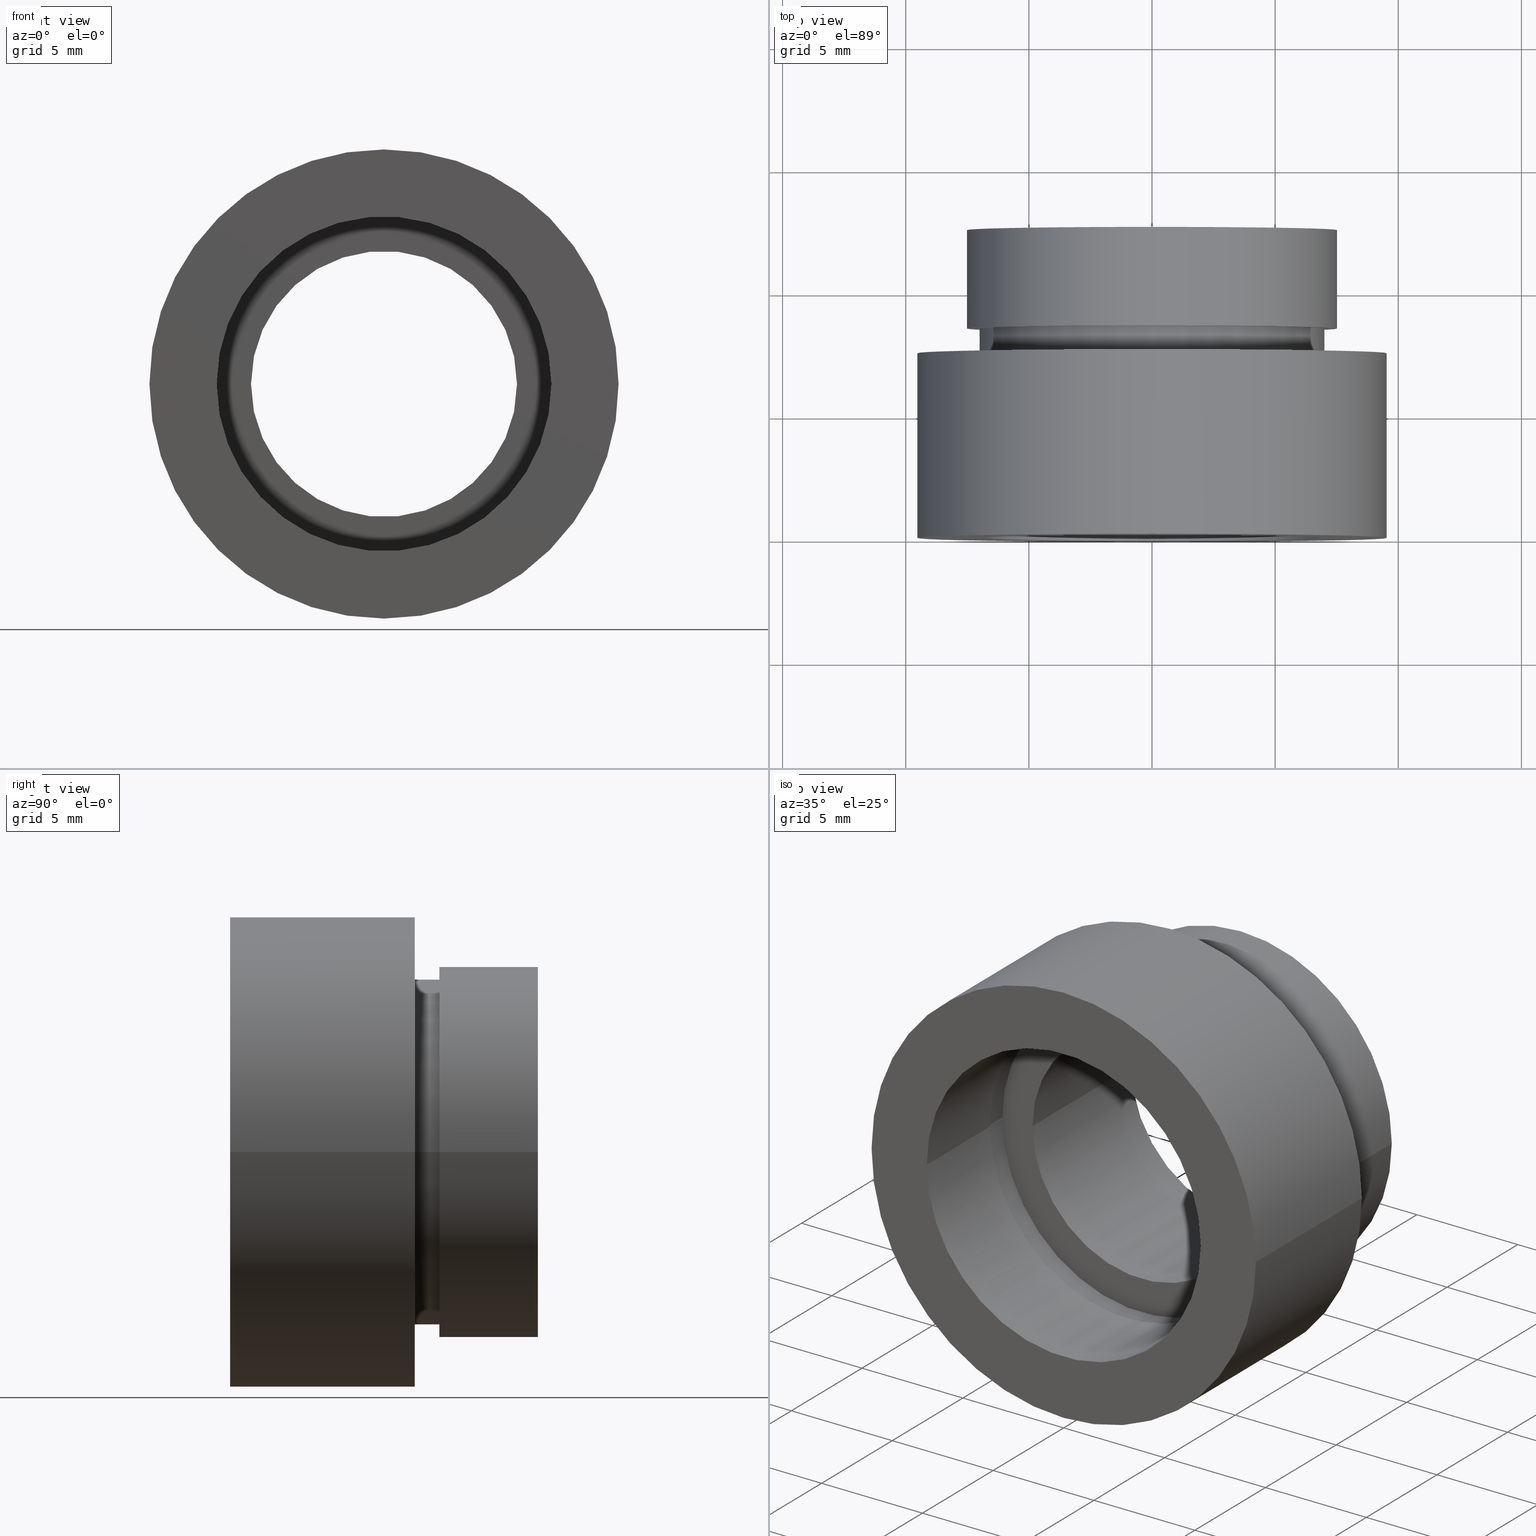
[diagram: canonical four-view strip — front | top / right | iso, engineering-drawing reading convention]
A machine part, canonical four-view strip (front | top / right | iso — engineering-drawing reading convention). The complete STEP part file that produces these views, byte-faithful:
ISO-10303-21;
HEADER;
FILE_DESCRIPTION (( 'STEP AP214' ),
    '1' );
FILE_NAME ('504137.STEP',
    '2019-10-09T01:15:19',
    ( '' ),
    ( '' ),
    'SwSTEP 2.0',
    'SolidWorks 2016',
    '' );
FILE_SCHEMA (( 'AUTOMOTIVE_DESIGN' ));
ENDSEC;

DATA;
#1 = EDGE_CURVE ( 'NONE', #377, #497, #611, .T. ) ;
#2 = SURFACE_STYLE_FILL_AREA ( #21 ) ;
#3 = CYLINDRICAL_SURFACE ( 'NONE', #606, 9.525000000000002100 ) ;
#4 = CARTESIAN_POINT ( 'NONE',  ( 0.0000000000000000000, 16.88601823708207700, 0.0000000000000000000 ) ) ;
#5 = DIRECTION ( 'NONE',  ( -1.000000000000000000, 0.0000000000000000000, 0.0000000000000000000 ) ) ;
#6 = ADVANCED_FACE ( 'NONE', ( #15 ), #59, .T. ) ;
#7 = DIRECTION ( 'NONE',  ( -1.000000000000000000, 0.0000000000000000000, 0.0000000000000000000 ) ) ;
#8 = AXIS2_PLACEMENT_3D ( 'NONE', #456, #609, #134 ) ;
#9 = UNCERTAINTY_MEASURE_WITH_UNIT (LENGTH_MEASURE( 1.000000000000000100E-005 ), #170, 'distance_accuracy_value', 'NONE');
#10 = LINE ( 'NONE', #88, #320 ) ;
#11 = ADVANCED_FACE ( 'NONE', ( #265 ), #247, .T. ) ;
#12 = EDGE_LOOP ( 'NONE', ( #400, #385 ) ) ;
#13 =( NAMED_UNIT ( * ) PLANE_ANGLE_UNIT ( ) SI_UNIT ( $, .RADIAN. ) );
#14 = EDGE_LOOP ( 'NONE', ( #126, #553, #147, #605 ) ) ;
#15 = FACE_OUTER_BOUND ( 'NONE', #526, .T. ) ;
#16 = FILL_AREA_STYLE_COLOUR ( '', #85 ) ;
#17 = DIRECTION ( 'NONE',  ( -1.224646799147351000E-016, 1.000000000000000000, -0.0000000000000000000 ) ) ;
#18 = AXIS2_PLACEMENT_3D ( 'NONE', #277, #623, #331 ) ;
#19 = DIRECTION ( 'NONE',  ( -1.000000000000000000, 0.0000000000000000000, 0.0000000000000000000 ) ) ;
#20 = DIRECTION ( 'NONE',  ( -1.000000000000000000, 0.0000000000000000000, 0.0000000000000000000 ) ) ;
#21 = FILL_AREA_STYLE ('',( #16 ) ) ;
#22 = CARTESIAN_POINT ( 'NONE',  ( -5.399999999999998600, 5.499999999999997300, 0.0000000000000000000 ) ) ;
#23 = MECHANICAL_DESIGN_GEOMETRIC_PRESENTATION_REPRESENTATION (  '', ( #304 ), #232 ) ;
#24 = ORIENTED_EDGE ( 'NONE', *, *, #186, .F. ) ;
#25 = CARTESIAN_POINT ( 'NONE',  ( 5.400000000000001200, 12.49999999999999600, 0.0000000000000000000 ) ) ;
#26 = AXIS2_PLACEMENT_3D ( 'NONE', #301, #493, #600 ) ;
#27 = CARTESIAN_POINT ( 'NONE',  ( 5.400000000000002100, 5.499999999999999100, 6.613092715395707500E-016 ) ) ;
#28 = MECHANICAL_DESIGN_GEOMETRIC_PRESENTATION_REPRESENTATION (  '', ( #345 ), #263 ) ;
#29 = EDGE_CURVE ( 'NONE', #467, #43, #361, .T. ) ;
#30 = CIRCLE ( 'NONE', #371, 7.509999999999999800 ) ;
#31 = CARTESIAN_POINT ( 'NONE',  ( 9.525000000000005700, 1.166476076187852400E-015, 1.166476076187854400E-015 ) ) ;
#32 = PRODUCT_DEFINITION ( 'δ֪', '', #89, #288 ) ;
#33 = VERTEX_POINT ( 'NONE', #520 ) ;
#34 = CARTESIAN_POINT ( 'NONE',  ( 1.394385078907593000E-015, 5.499999999999998200, 0.0000000000000000000 ) ) ;
#35 = AXIS2_PLACEMENT_3D ( 'NONE', #293, #154, #583 ) ;
#36 = EDGE_CURVE ( 'NONE', #45, #596, #125, .T. ) ;
#37 = COLOUR_RGB ( '',1.000000000000000000, 1.000000000000000000, 1.000000000000000000 ) ;
#38 = CARTESIAN_POINT ( 'NONE',  ( 6.795000000000002600, 8.321475000206250400E-016, 8.321475000206265200E-016 ) ) ;
#39 = PRESENTATION_LAYER_ASSIGNMENT (  '', '', ( #345 ) ) ;
#40 = DIRECTION ( 'NONE',  ( -1.000000000000000000, 0.0000000000000000000, 0.0000000000000000000 ) ) ;
#41 = DIRECTION ( 'NONE',  ( -1.224646799147351000E-016, 1.000000000000000000, -0.0000000000000000000 ) ) ;
#42 = FACE_OUTER_BOUND ( 'NONE', #81, .T. ) ;
#43 = VERTEX_POINT ( 'NONE', #194 ) ;
#44 = AXIS2_PLACEMENT_3D ( 'NONE', #163, #65, #112 ) ;
#45 = VERTEX_POINT ( 'NONE', #425 ) ;
#46 = ORIENTED_EDGE ( 'NONE', *, *, #275, .T. ) ;
#47 = CARTESIAN_POINT ( 'NONE',  ( 2.067940818438636100E-015, 0.0000000000000000000, 0.0000000000000000000 ) ) ;
#48 = EDGE_CURVE ( 'NONE', #308, #314, #298, .T. ) ;
#49 = CARTESIAN_POINT ( 'NONE',  ( -7.000000000000000000, 16.88601823708207700, 0.0000000000000000000 ) ) ;
#50 = DIRECTION ( 'NONE',  ( 1.224646799147351000E-016, -1.000000000000000000, 0.0000000000000000000 ) ) ;
#51 = EDGE_LOOP ( 'NONE', ( #282, #171 ) ) ;
#52 = STYLED_ITEM ( 'NONE', ( #285 ), #11 ) ;
#53 = CARTESIAN_POINT ( 'NONE',  ( 0.0000000000000000000, 16.88601823708207700, 0.0000000000000000000 ) ) ;
#54 =( GEOMETRIC_REPRESENTATION_CONTEXT ( 3 ) GLOBAL_UNCERTAINTY_ASSIGNED_CONTEXT ( ( #387 ) ) GLOBAL_UNIT_ASSIGNED_CONTEXT ( ( #340, #56, #476 ) ) REPRESENTATION_CONTEXT ( 'NONE', 'WORKASPACE' ) );
#55 = ADVANCED_FACE ( 'NONE', ( #177 ), #3, .T. ) ;
#56 =( NAMED_UNIT ( * ) PLANE_ANGLE_UNIT ( ) SI_UNIT ( $, .RADIAN. ) );
#57 = COLOUR_RGB ( '',1.000000000000000000, 1.000000000000000000, 1.000000000000000000 ) ;
#58 = UNCERTAINTY_MEASURE_WITH_UNIT (LENGTH_MEASURE( 1.000000000000000100E-005 ), #63, 'distance_accuracy_value', 'NONE');
#59 = CYLINDRICAL_SURFACE ( 'NONE', #64, 7.000000000000000000 ) ;
#60 = ORIENTED_EDGE ( 'NONE', *, *, #440, .F. ) ;
#61 = ORIENTED_EDGE ( 'NONE', *, *, #99, .T. ) ;
#62 =( NAMED_UNIT ( * ) SI_UNIT ( $, .STERADIAN. ) SOLID_ANGLE_UNIT ( ) );
#63 =( LENGTH_UNIT ( ) NAMED_UNIT ( * ) SI_UNIT ( .MILLI., .METRE. ) );
#64 = AXIS2_PLACEMENT_3D ( 'NONE', #53, #284, #107 ) ;
#65 = DIRECTION ( 'NONE',  ( -1.224646799147351000E-016, 1.000000000000000000, -0.0000000000000000000 ) ) ;
#66 = CIRCLE ( 'NONE', #148, 9.525000000000003900 ) ;
#67 = ORIENTED_EDGE ( 'NONE', *, *, #1, .T. ) ;
#68 = CARTESIAN_POINT ( 'NONE',  ( 0.0000000000000000000, 16.88601823708207700, 0.0000000000000000000 ) ) ;
#69 = CARTESIAN_POINT ( 'NONE',  ( 2.067940818438636100E-015, 0.0000000000000000000, 0.0000000000000000000 ) ) ;
#70 = DIRECTION ( 'NONE',  ( -1.000000000000000000, 0.0000000000000000000, 0.0000000000000000000 ) ) ;
#71 = CIRCLE ( 'NONE', #166, 5.400000000000000400 ) ;
#72 = ORIENTED_EDGE ( 'NONE', *, *, #530, .T. ) ;
#73 = DIRECTION ( 'NONE',  ( -1.224646799147351000E-016, 1.000000000000000000, 0.0000000000000000000 ) ) ;
#74 = EDGE_CURVE ( 'NONE', #102, #489, #252, .T. ) ;
#75 =( NAMED_UNIT ( * ) SI_UNIT ( $, .STERADIAN. ) SOLID_ANGLE_UNIT ( ) );
#76 = UNCERTAINTY_MEASURE_WITH_UNIT (LENGTH_MEASURE( 1.000000000000000100E-005 ), #372, 'distance_accuracy_value', 'NONE');
#77 = SURFACE_STYLE_FILL_AREA ( #299 ) ;
#78 = EDGE_CURVE ( 'NONE', #33, #221, #474, .T. ) ;
#79 = FACE_BOUND ( 'NONE', #241, .T. ) ;
#80 = CIRCLE ( 'NONE', #327, 5.400000000000000400 ) ;
#81 = EDGE_LOOP ( 'NONE', ( #213, #323, #200, #423 ) ) ;
#82 = EDGE_LOOP ( 'NONE', ( #409, #287 ) ) ;
#83 = AXIS2_PLACEMENT_3D ( 'NONE', #114, #529, #478 ) ;
#84 = SURFACE_SIDE_STYLE ('',( #495 ) ) ;
#85 = COLOUR_RGB ( '',1.000000000000000000, 1.000000000000000000, 1.000000000000000000 ) ;
#86 = AXIS2_PLACEMENT_3D ( 'NONE', #152, #160, #528 ) ;
#87 = EDGE_LOOP ( 'NONE', ( #229, #446 ) ) ;
#88 = CARTESIAN_POINT ( 'NONE',  ( -6.900000000000000400, 16.88601823708207700, 0.0000000000000000000 ) ) ;
#89 = PRODUCT_DEFINITION_FORMATION_WITH_SPECIFIED_SOURCE ( '�κ�', '', #257, .NOT_KNOWN. ) ;
#90 = EDGE_LOOP ( 'NONE', ( #110, #362, #620, #399 ) ) ;
#91 = EDGE_CURVE ( 'NONE', #369, #306, #131, .T. ) ;
#92 = CARTESIAN_POINT ( 'NONE',  ( 1.394385078907593000E-015, 5.499999999999998200, 0.0000000000000000000 ) ) ;
#93 = ADVANCED_FACE ( 'NONE', ( #479 ), #502, .F. ) ;
#94 = CYLINDRICAL_SURFACE ( 'NONE', #119, 6.900000000000000400 ) ;
#95 = AXIS2_PLACEMENT_3D ( 'NONE', #203, #391, #249 ) ;
#96 = EDGE_LOOP ( 'NONE', ( #184, #621 ) ) ;
#97 = DIRECTION ( 'NONE',  ( -1.224646799147351000E-016, 1.000000000000000000, -0.0000000000000000000 ) ) ;
#98 =( GEOMETRIC_REPRESENTATION_CONTEXT ( 3 ) GLOBAL_UNCERTAINTY_ASSIGNED_CONTEXT ( ( #464 ) ) GLOBAL_UNIT_ASSIGNED_CONTEXT ( ( #413, #178, #604 ) ) REPRESENTATION_CONTEXT ( 'NONE', 'WORKASPACE' ) );
#99 = EDGE_CURVE ( 'NONE', #185, #102, #384, .T. ) ;
#100 = ADVANCED_FACE ( 'NONE', ( #427 ), #575, .F. ) ;
#101 = ADVANCED_FACE ( 'NONE', ( #176 ), #610, .T. ) ;
#102 = VERTEX_POINT ( 'NONE', #157 ) ;
#103 = ORIENTED_EDGE ( 'NONE', *, *, #622, .T. ) ;
#104 = FILL_AREA_STYLE ('',( #577 ) ) ;
#105 = FILL_AREA_STYLE_COLOUR ( '', #303 ) ;
#106 = STYLED_ITEM ( 'NONE', ( #109 ), #100 ) ;
#107 = DIRECTION ( 'NONE',  ( -1.000000000000000000, 0.0000000000000000000, 0.0000000000000000000 ) ) ;
#108 = PRESENTATION_STYLE_ASSIGNMENT (( #505 ) ) ;
#109 = PRESENTATION_STYLE_ASSIGNMENT (( #347 ) ) ;
#110 = ORIENTED_EDGE ( 'NONE', *, *, #616, .T. ) ;
#111 = CARTESIAN_POINT ( 'NONE',  ( 5.371323195044475300E-016, 12.49999999999999600, 0.0000000000000000000 ) ) ;
#112 = DIRECTION ( 'NONE',  ( -1.000000000000000000, -1.239088197126290800E-016, 0.0000000000000000000 ) ) ;
#113 = CARTESIAN_POINT ( 'NONE',  ( 1.026991039163387700E-015, 8.499999999999998200, 0.0000000000000000000 ) ) ;
#114 = CARTESIAN_POINT ( 'NONE',  ( 5.371323195044475300E-016, 12.49999999999999600, 0.0000000000000000000 ) ) ;
#115 = AXIS2_PLACEMENT_3D ( 'NONE', #487, #309, #251 ) ;
#116 = FACE_OUTER_BOUND ( 'NONE', #339, .T. ) ;
#117 = DIRECTION ( 'NONE',  ( -1.224646799147351000E-016, 1.000000000000000000, -0.0000000000000000000 ) ) ;
#118 = EDGE_LOOP ( 'NONE', ( #272, #363 ) ) ;
#119 = AXIS2_PLACEMENT_3D ( 'NONE', #123, #448, #70 ) ;
#120 = DIRECTION ( 'NONE',  ( -1.224646799147351000E-016, 1.000000000000000000, -0.0000000000000000000 ) ) ;
#121 = MANIFOLD_SOLID_BREP ( '��ת1', #356 ) ;
#122 = VECTOR ( 'NONE', #508, 1000.000000000000000 ) ;
#123 = CARTESIAN_POINT ( 'NONE',  ( 0.0000000000000000000, 16.88601823708207700, 0.0000000000000000000 ) ) ;
#124 = CYLINDRICAL_SURFACE ( 'NONE', #379, 7.509999999999999800 ) ;
#125 = CIRCLE ( 'NONE', #95, 7.000000000000000000 ) ;
#126 = ORIENTED_EDGE ( 'NONE', *, *, #573, .F. ) ;
#127 = MECHANICAL_DESIGN_GEOMETRIC_PRESENTATION_REPRESENTATION (  '', ( #106 ), #359 ) ;
#128 = EDGE_CURVE ( 'NONE', #578, #236, #337, .T. ) ;
#129 = DIRECTION ( 'NONE',  ( 1.000000000000000000, 1.224646799147351000E-016, 0.0000000000000000000 ) ) ;
#130 = AXIS2_PLACEMENT_3D ( 'NONE', #326, #231, #269 ) ;
#131 = LINE ( 'NONE', #485, #488 ) ;
#132 = ORIENTED_EDGE ( 'NONE', *, *, #473, .T. ) ;
#133 = DIRECTION ( 'NONE',  ( -1.000000000000000000, -9.106159978880877400E-017, 0.0000000000000000000 ) ) ;
#134 = DIRECTION ( 'NONE',  ( -1.000000000000000000, -2.309884788251407900E-016, 0.0000000000000000000 ) ) ;
#135 = PLANE ( 'NONE',  #183 ) ;
#136 = VECTOR ( 'NONE', #120, 1000.000000000000000 ) ;
#137 = AXIS2_PLACEMENT_3D ( 'NONE', #441, #17, #204 ) ;
#138 = PRODUCT_CONTEXT ( 'NONE', #554, 'mechanical' ) ;
#139 = EDGE_LOOP ( 'NONE', ( #438, #165 ) ) ;
#140 = CARTESIAN_POINT ( 'NONE',  ( -9.524999999999998600, 7.499999999999997300, 0.0000000000000000000 ) ) ;
#141 = ADVANCED_FACE ( 'NONE', ( #161 ), #536, .F. ) ;
#142 = ORIENTED_EDGE ( 'NONE', *, *, #244, .T. ) ;
#143 =( NAMED_UNIT ( * ) SI_UNIT ( $, .STERADIAN. ) SOLID_ANGLE_UNIT ( ) );
#144 = DIRECTION ( 'NONE',  ( -1.000000000000000000, 0.0000000000000000000, 0.0000000000000000000 ) ) ;
#145 = DIRECTION ( 'NONE',  ( -1.224646799147351000E-016, 1.000000000000000000, -0.0000000000000000000 ) ) ;
#146 = AXIS2_PLACEMENT_3D ( 'NONE', #34, #211, #595 ) ;
#147 = ORIENTED_EDGE ( 'NONE', *, *, #151, .T. ) ;
#148 = AXIS2_PLACEMENT_3D ( 'NONE', #69, #394, #246 ) ;
#149 = PRESENTATION_LAYER_ASSIGNMENT (  '', '', ( #167 ) ) ;
#150 = AXIS2_PLACEMENT_3D ( 'NONE', #407, #458, #318 ) ;
#151 = EDGE_CURVE ( 'NONE', #489, #102, #80, .T. ) ;
#152 = CARTESIAN_POINT ( 'NONE',  ( 1.026991039163387500E-015, 8.500000000000000000, 0.0000000000000000000 ) ) ;
#153 = ORIENTED_EDGE ( 'NONE', *, *, #591, .T. ) ;
#154 = DIRECTION ( 'NONE',  ( -1.224646799147351000E-016, 1.000000000000000000, -0.0000000000000000000 ) ) ;
#155 =( LENGTH_UNIT ( ) NAMED_UNIT ( * ) SI_UNIT ( .MILLI., .METRE. ) );
#156 = CARTESIAN_POINT ( 'NONE',  ( 1.394385078907593000E-015, 5.499999999999998200, 0.0000000000000000000 ) ) ;
#157 = CARTESIAN_POINT ( 'NONE',  ( -5.399999999999999500, 12.49999999999999600, 0.0000000000000000000 ) ) ;
#158 = FACE_BOUND ( 'NONE', #82, .T. ) ;
#159 = FACE_BOUND ( 'NONE', #519, .T. ) ;
#160 = DIRECTION ( 'NONE',  ( -1.224646799147351000E-016, 1.000000000000000000, -0.0000000000000000000 ) ) ;
#161 = FACE_OUTER_BOUND ( 'NONE', #14, .T. ) ;
#162 = EDGE_LOOP ( 'NONE', ( #475, #589 ) ) ;
#163 = CARTESIAN_POINT ( 'NONE',  ( 1.149455719078122500E-015, 7.500000000000000000, 0.0000000000000000000 ) ) ;
#164 = EDGE_CURVE ( 'NONE', #333, #454, #568, .T. ) ;
#165 = ORIENTED_EDGE ( 'NONE', *, *, #48, .F. ) ;
#166 = AXIS2_PLACEMENT_3D ( 'NONE', #92, #424, #188 ) ;
#167 = STYLED_ITEM ( 'NONE', ( #329 ), #515 ) ;
#168 = CARTESIAN_POINT ( 'NONE',  ( 5.400000000000001200, 12.49999999999999600, 6.613092715395707500E-016 ) ) ;
#169 = SURFACE_STYLE_FILL_AREA ( #305 ) ;
#170 =( LENGTH_UNIT ( ) NAMED_UNIT ( * ) SI_UNIT ( .MILLI., .METRE. ) );
#171 = ORIENTED_EDGE ( 'NONE', *, *, #353, .F. ) ;
#172 = ORIENTED_EDGE ( 'NONE', *, *, #530, .F. ) ;
#173 = AXIS2_PLACEMENT_3D ( 'NONE', #334, #197, #386 ) ;
#174 = CIRCLE ( 'NONE', #576, 6.794999999999999900 ) ;
#175 = DIRECTION ( 'NONE',  ( -1.224646799147351000E-016, 1.000000000000000000, -0.0000000000000000000 ) ) ;
#176 = FACE_OUTER_BOUND ( 'NONE', #558, .T. ) ;
#177 = FACE_OUTER_BOUND ( 'NONE', #482, .T. ) ;
#178 =( NAMED_UNIT ( * ) PLANE_ANGLE_UNIT ( ) SI_UNIT ( $, .RADIAN. ) );
#179 = SURFACE_STYLE_USAGE ( .BOTH. , #84 ) ;
#180 = DIRECTION ( 'NONE',  ( -1.224646799147351000E-016, 1.000000000000000000, -0.0000000000000000000 ) ) ;
#181 = AXIS2_PLACEMENT_3D ( 'NONE', #447, #496, #217 ) ;
#182 = DIRECTION ( 'NONE',  ( -1.000000000000000000, -1.224646799147351000E-016, 0.0000000000000000000 ) ) ;
#183 = AXIS2_PLACEMENT_3D ( 'NONE', #617, #559, #418 ) ;
#184 = ORIENTED_EDGE ( 'NONE', *, *, #36, .T. ) ;
#185 = VERTEX_POINT ( 'NONE', #22 ) ;
#186 = EDGE_CURVE ( 'NONE', #316, #587, #312, .T. ) ;
#187 = ADVANCED_BREP_SHAPE_REPRESENTATION ( '504137', ( #121, #518 ), #196 ) ;
#188 = DIRECTION ( 'NONE',  ( -1.000000000000000000, -1.606225440719265600E-016, 0.0000000000000000000 ) ) ;
#189 = LINE ( 'NONE', #49, #564 ) ;
#190 = FACE_OUTER_BOUND ( 'NONE', #569, .T. ) ;
#191 = PRESENTATION_LAYER_ASSIGNMENT (  '', '', ( #585 ) ) ;
#192 = VECTOR ( 'NONE', #392, 1000.000000000000000 ) ;
#193 = ORIENTED_EDGE ( 'NONE', *, *, #223, .F. ) ;
#194 = CARTESIAN_POINT ( 'NONE',  ( 6.795000000000000800, 4.499999999999998200, 8.321475000206263300E-016 ) ) ;
#195 = EDGE_CURVE ( 'NONE', #596, #45, #297, .T. ) ;
#196 =( GEOMETRIC_REPRESENTATION_CONTEXT ( 3 ) GLOBAL_UNCERTAINTY_ASSIGNED_CONTEXT ( ( #290 ) ) GLOBAL_UNIT_ASSIGNED_CONTEXT ( ( #234, #419, #143 ) ) REPRESENTATION_CONTEXT ( 'NONE', 'WORKASPACE' ) );
#197 = DIRECTION ( 'NONE',  ( -1.224646799147351000E-016, 1.000000000000000000, -0.0000000000000000000 ) ) ;
#198 = VECTOR ( 'NONE', #563, 1000.000000000000000 ) ;
#199 = ORIENTED_EDGE ( 'NONE', *, *, #275, .F. ) ;
#200 = ORIENTED_EDGE ( 'NONE', *, *, #128, .T. ) ;
#201 = DIRECTION ( 'NONE',  ( -1.224646799147351000E-016, 1.000000000000000000, -0.0000000000000000000 ) ) ;
#202 = PRESENTATION_LAYER_ASSIGNMENT (  '', '', ( #304 ) ) ;
#203 = CARTESIAN_POINT ( 'NONE',  ( 1.026991039163387500E-015, 8.500000000000000000, 0.0000000000000000000 ) ) ;
#204 = DIRECTION ( 'NONE',  ( -1.000000000000000000, 0.0000000000000000000, 0.0000000000000000000 ) ) ;
#205 = COLOUR_RGB ( '',1.000000000000000000, 1.000000000000000000, 1.000000000000000000 ) ;
#206 = CARTESIAN_POINT ( 'NONE',  ( 0.0000000000000000000, 16.88601823708207700, 0.0000000000000000000 ) ) ;
#207 = EDGE_CURVE ( 'NONE', #369, #578, #437, .T. ) ;
#208 = ORIENTED_EDGE ( 'NONE', *, *, #612, .T. ) ;
#209 = DIRECTION ( 'NONE',  ( -1.000000000000000000, -2.309884788251407900E-016, 0.0000000000000000000 ) ) ;
#210 = PLANE ( 'NONE',  #268 ) ;
#211 = DIRECTION ( 'NONE',  ( -1.224646799147351000E-016, 1.000000000000000000, -0.0000000000000000000 ) ) ;
#212 = SURFACE_STYLE_FILL_AREA ( #592 ) ;
#213 = ORIENTED_EDGE ( 'NONE', *, *, #91, .F. ) ;
#214 = ORIENTED_EDGE ( 'NONE', *, *, #343, .T. ) ;
#215 = CARTESIAN_POINT ( 'NONE',  ( -6.794999999999998200, -8.321475000206249500E-016, 0.0000000000000000000 ) ) ;
#216 = EDGE_CURVE ( 'NONE', #316, #377, #66, .T. ) ;
#217 = DIRECTION ( 'NONE',  ( -1.000000000000000000, -1.224646799147351200E-016, 0.0000000000000000000 ) ) ;
#218 = CIRCLE ( 'NONE', #341, 9.525000000000000400 ) ;
#219 = CARTESIAN_POINT ( 'NONE',  ( -6.899999999999998600, 4.499999999999996400, 0.0000000000000000000 ) ) ;
#220 = ORIENTED_EDGE ( 'NONE', *, *, #580, .F. ) ;
#221 = VERTEX_POINT ( 'NONE', #433 ) ;
#222 = STYLED_ITEM ( 'NONE', ( #245 ), #283 ) ;
#223 = EDGE_CURVE ( 'NONE', #454, #333, #330, .T. ) ;
#224 = APPLICATION_CONTEXT ( 'automotive_design' ) ;
#225 = DIRECTION ( 'NONE',  ( -1.224646799147351000E-016, 1.000000000000000000, -0.0000000000000000000 ) ) ;
#226 = CIRCLE ( 'NONE', #242, 6.794999999999999000 ) ;
#227 = VECTOR ( 'NONE', #484, 1000.000000000000000 ) ;
#228 = CARTESIAN_POINT ( 'NONE',  ( 1.516849758822328300E-015, 4.499999999999997300, 0.0000000000000000000 ) ) ;
#229 = ORIENTED_EDGE ( 'NONE', *, *, #29, .F. ) ;
#230 = UNCERTAINTY_MEASURE_WITH_UNIT (LENGTH_MEASURE( 1.000000000000000100E-005 ), #590, 'distance_accuracy_value', 'NONE');
#231 = DIRECTION ( 'NONE',  ( -1.224646799147351000E-016, 1.000000000000000000, -0.0000000000000000000 ) ) ;
#232 =( GEOMETRIC_REPRESENTATION_CONTEXT ( 3 ) GLOBAL_UNCERTAINTY_ASSIGNED_CONTEXT ( ( #342 ) ) GLOBAL_UNIT_ASSIGNED_CONTEXT ( ( #155, #13, #477 ) ) REPRESENTATION_CONTEXT ( 'NONE', 'WORKASPACE' ) );
#233 = CARTESIAN_POINT ( 'NONE',  ( 0.0000000000000000000, 0.0000000000000000000, 0.0000000000000000000 ) ) ;
#234 =( LENGTH_UNIT ( ) NAMED_UNIT ( * ) SI_UNIT ( .MILLI., .METRE. ) );
#235 = COLOUR_RGB ( '',1.000000000000000000, 1.000000000000000000, 1.000000000000000000 ) ;
#236 = VERTEX_POINT ( 'NONE', #300 ) ;
#237 = CARTESIAN_POINT ( 'NONE',  ( 7.000000000000000900, 7.500000000000000000, 0.0000000000000000000 ) ) ;
#238 = CIRCLE ( 'NONE', #181, 9.525000000000003900 ) ;
#239 = FILL_AREA_STYLE_COLOUR ( '', #618 ) ;
#240 = EDGE_LOOP ( 'NONE', ( #468, #103, #430, #199 ) ) ;
#241 = EDGE_LOOP ( 'NONE', ( #408, #208 ) ) ;
#242 = AXIS2_PLACEMENT_3D ( 'NONE', #228, #556, #550 ) ;
#243 = ADVANCED_FACE ( 'NONE', ( #281, #79 ), #543, .F. ) ;
#244 = EDGE_CURVE ( 'NONE', #221, #33, #602, .T. ) ;
#245 = PRESENTATION_STYLE_ASSIGNMENT (( #541 ) ) ;
#246 = DIRECTION ( 'NONE',  ( -1.000000000000000000, -1.224646799147351200E-016, 0.0000000000000000000 ) ) ;
#247 = CYLINDRICAL_SURFACE ( 'NONE', #500, 7.509999999999999800 ) ;
#248 =( NAMED_UNIT ( * ) PLANE_ANGLE_UNIT ( ) SI_UNIT ( $, .RADIAN. ) );
#249 = DIRECTION ( 'NONE',  ( -1.000000000000000000, 0.0000000000000000000, 0.0000000000000000000 ) ) ;
#250 = AXIS2_PLACEMENT_3D ( 'NONE', #156, #588, #295 ) ;
#251 = DIRECTION ( 'NONE',  ( -1.000000000000000000, -1.257045997084642900E-016, 0.0000000000000000000 ) ) ;
#252 = CIRCLE ( 'NONE', #83, 5.400000000000000400 ) ;
#253 = DIRECTION ( 'NONE',  ( -1.000000000000000000, 0.0000000000000000000, 0.0000000000000000000 ) ) ;
#254 = CARTESIAN_POINT ( 'NONE',  ( 9.525000000000005700, -7.918900577448027900E-016, 0.0000000000000000000 ) ) ;
#255 = VECTOR ( 'NONE', #97, 1000.000000000000000 ) ;
#256 = PLANE ( 'NONE',  #26 ) ;
#257 = PRODUCT ( '504137', '504137', '', ( #138 ) ) ;
#258 = AXIS2_PLACEMENT_3D ( 'NONE', #68, #435, #7 ) ;
#259 = ORIENTED_EDGE ( 'NONE', *, *, #517, .T. ) ;
#260 = DIRECTION ( 'NONE',  ( -1.224646799147351000E-016, 1.000000000000000000, -0.0000000000000000000 ) ) ;
#261 = MECHANICAL_DESIGN_GEOMETRIC_PRESENTATION_REPRESENTATION (  '', ( #167 ), #98 ) ;
#262 = FILL_AREA_STYLE ('',( #555 ) ) ;
#263 =( GEOMETRIC_REPRESENTATION_CONTEXT ( 3 ) GLOBAL_UNCERTAINTY_ASSIGNED_CONTEXT ( ( #76 ) ) GLOBAL_UNIT_ASSIGNED_CONTEXT ( ( #372, #511, #507 ) ) REPRESENTATION_CONTEXT ( 'NONE', 'WORKASPACE' ) );
#264 = CARTESIAN_POINT ( 'NONE',  ( 0.0000000000000000000, 16.88601823708207700, 0.0000000000000000000 ) ) ;
#265 = FACE_OUTER_BOUND ( 'NONE', #90, .T. ) ;
#266 = SURFACE_SIDE_STYLE ('',( #451 ) ) ;
#267 = FILL_AREA_STYLE_COLOUR ( '', #584 ) ;
#268 = AXIS2_PLACEMENT_3D ( 'NONE', #25, #499, #129 ) ;
#269 = DIRECTION ( 'NONE',  ( -1.000000000000000000, -1.606225440719265600E-016, 0.0000000000000000000 ) ) ;
#270 = LINE ( 'NONE', #624, #122 ) ;
#271 = VECTOR ( 'NONE', #396, 1000.000000000000000 ) ;
#272 = ORIENTED_EDGE ( 'NONE', *, *, #537, .T. ) ;
#273 = CARTESIAN_POINT ( 'NONE',  ( 5.400000000000002100, 5.499999999999997300, 0.0000000000000000000 ) ) ;
#274 = VERTEX_POINT ( 'NONE', #215 ) ;
#275 = EDGE_CURVE ( 'NONE', #274, #467, #566, .T. ) ;
#276 = DIRECTION ( 'NONE',  ( -1.000000000000000000, -1.224646799147351000E-016, 0.0000000000000000000 ) ) ;
#277 = CARTESIAN_POINT ( 'NONE',  ( 1.026991039163387700E-015, 8.499999999999998200, 0.0000000000000000000 ) ) ;
#278 = PRESENTATION_LAYER_ASSIGNMENT (  '', '', ( #106 ) ) ;
#279 = CYLINDRICAL_SURFACE ( 'NONE', #614, 7.000000000000000000 ) ;
#280 = FACE_BOUND ( 'NONE', #96, .T. ) ;
#281 = FACE_OUTER_BOUND ( 'NONE', #51, .T. ) ;
#282 = ORIENTED_EDGE ( 'NONE', *, *, #216, .F. ) ;
#283 = ADVANCED_FACE ( 'NONE', ( #42 ), #124, .T. ) ;
#284 = DIRECTION ( 'NONE',  ( -1.224646799147351000E-016, 1.000000000000000000, -0.0000000000000000000 ) ) ;
#285 = PRESENTATION_STYLE_ASSIGNMENT (( #383 ) ) ;
#286 = SURFACE_STYLE_USAGE ( .BOTH. , #434 ) ;
#287 = ORIENTED_EDGE ( 'NONE', *, *, #244, .F. ) ;
#288 = PRODUCT_DEFINITION_CONTEXT ( 'detailed design', #224, 'design' ) ;
#289 = VERTEX_POINT ( 'NONE', #27 ) ;
#290 = UNCERTAINTY_MEASURE_WITH_UNIT (LENGTH_MEASURE( 1.000000000000000100E-005 ), #234, 'distance_accuracy_value', 'NONE');
#291 = CARTESIAN_POINT ( 'NONE',  ( 9.525000000000002100, 16.88601823708207700, 1.166476076187854200E-015 ) ) ;
#292 = MECHANICAL_DESIGN_GEOMETRIC_PRESENTATION_REPRESENTATION (  '', ( #585 ), #470 ) ;
#293 = CARTESIAN_POINT ( 'NONE',  ( 0.0000000000000000000, 16.88601823708207700, 0.0000000000000000000 ) ) ;
#294 = CARTESIAN_POINT ( 'NONE',  ( 1.516849758822328300E-015, 4.499999999999997300, 0.0000000000000000000 ) ) ;
#295 = DIRECTION ( 'NONE',  ( -1.000000000000000000, -1.257045997084642900E-016, 0.0000000000000000000 ) ) ;
#296 = FACE_OUTER_BOUND ( 'NONE', #460, .T. ) ;
#297 = CIRCLE ( 'NONE', #86, 7.000000000000000000 ) ;
#298 = CIRCLE ( 'NONE', #250, 6.900000000000000400 ) ;
#299 = FILL_AREA_STYLE ('',( #239 ) ) ;
#300 = CARTESIAN_POINT ( 'NONE',  ( -7.509999999999998900, 12.49999999999999500, 0.0000000000000000000 ) ) ;
#301 = CARTESIAN_POINT ( 'NONE',  ( 7.510000000000000700, 8.500000000000000000, 0.0000000000000000000 ) ) ;
#302 = DIRECTION ( 'NONE',  ( -1.000000000000000000, -1.239088197126290800E-016, 0.0000000000000000000 ) ) ;
#303 = COLOUR_RGB ( '',1.000000000000000000, 1.000000000000000000, 1.000000000000000000 ) ;
#304 = STYLED_ITEM ( 'NONE', ( #348 ), #121 ) ;
#305 = FILL_AREA_STYLE ('',( #403 ) ) ;
#306 = VERTEX_POINT ( 'NONE', #491 ) ;
#307 = ORIENTED_EDGE ( 'NONE', *, *, #186, .T. ) ;
#308 = VERTEX_POINT ( 'NONE', #490 ) ;
#309 = DIRECTION ( 'NONE',  ( -1.224646799147351000E-016, 1.000000000000000000, -0.0000000000000000000 ) ) ;
#310 = CARTESIAN_POINT ( 'NONE',  ( -6.899999999999998600, 5.499999999999997300, 0.0000000000000000000 ) ) ;
#311 = FACE_OUTER_BOUND ( 'NONE', #416, .T. ) ;
#312 = LINE ( 'NONE', #393, #192 ) ;
#313 =( GEOMETRIC_REPRESENTATION_CONTEXT ( 3 ) GLOBAL_UNCERTAINTY_ASSIGNED_CONTEXT ( ( #9 ) ) GLOBAL_UNIT_ASSIGNED_CONTEXT ( ( #170, #540, #75 ) ) REPRESENTATION_CONTEXT ( 'NONE', 'WORKASPACE' ) );
#314 = VERTEX_POINT ( 'NONE', #310 ) ;
#315 = FILL_AREA_STYLE ('',( #267 ) ) ;
#316 = VERTEX_POINT ( 'NONE', #601 ) ;
#317 = DIRECTION ( 'NONE',  ( 0.0000000000000000000, 0.0000000000000000000, 1.000000000000000000 ) ) ;
#318 = DIRECTION ( 'NONE',  ( -1.000000000000000000, 0.0000000000000000000, 0.0000000000000000000 ) ) ;
#319 = CARTESIAN_POINT ( 'NONE',  ( 5.371323195044473300E-016, 12.49999999999999600, 0.0000000000000000000 ) ) ;
#320 = VECTOR ( 'NONE', #180, 1000.000000000000000 ) ;
#321 =( LENGTH_UNIT ( ) NAMED_UNIT ( * ) SI_UNIT ( .MILLI., .METRE. ) );
#322 = ORIENTED_EDGE ( 'NONE', *, *, #492, .T. ) ;
#323 = ORIENTED_EDGE ( 'NONE', *, *, #207, .T. ) ;
#324 = APPLICATION_PROTOCOL_DEFINITION ( 'draft international standard', 'automotive_design', 1998, #554 ) ;
#325 = CARTESIAN_POINT ( 'NONE',  ( -7.509999999999998900, 8.499999999999996400, 0.0000000000000000000 ) ) ;
#326 = CARTESIAN_POINT ( 'NONE',  ( 1.394385078907593000E-015, 5.499999999999998200, 0.0000000000000000000 ) ) ;
#327 = AXIS2_PLACEMENT_3D ( 'NONE', #111, #201, #20 ) ;
#328 = CIRCLE ( 'NONE', #130, 5.400000000000000400 ) ;
#329 = PRESENTATION_STYLE_ASSIGNMENT (( #501 ) ) ;
#330 = CIRCLE ( 'NONE', #115, 6.900000000000000400 ) ;
#331 = DIRECTION ( 'NONE',  ( -1.000000000000000000, -2.309884788251407900E-016, 0.0000000000000000000 ) ) ;
#332 = ADVANCED_FACE ( 'NONE', ( #366, #280 ), #256, .F. ) ;
#333 = VERTEX_POINT ( 'NONE', #450 ) ;
#334 = CARTESIAN_POINT ( 'NONE',  ( 1.516849758822328300E-015, 4.499999999999997300, 0.0000000000000000000 ) ) ;
#335 = FACE_OUTER_BOUND ( 'NONE', #139, .T. ) ;
#336 = ADVANCED_FACE ( 'NONE', ( #116 ), #94, .F. ) ;
#337 = LINE ( 'NONE', #480, #586 ) ;
#338 = ORIENTED_EDGE ( 'NONE', *, *, #216, .T. ) ;
#339 = EDGE_LOOP ( 'NONE', ( #603, #153, #459, #395 ) ) ;
#340 =( LENGTH_UNIT ( ) NAMED_UNIT ( * ) SI_UNIT ( .MILLI., .METRE. ) );
#341 = AXIS2_PLACEMENT_3D ( 'NONE', #455, #368, #133 ) ;
#342 = UNCERTAINTY_MEASURE_WITH_UNIT (LENGTH_MEASURE( 1.000000000000000100E-005 ), #155, 'distance_accuracy_value', 'NONE');
#343 = EDGE_CURVE ( 'NONE', #314, #308, #358, .T. ) ;
#344 = SHAPE_DEFINITION_REPRESENTATION ( #608, #187 ) ;
#345 = STYLED_ITEM ( 'NONE', ( #108 ), #187 ) ;
#346 = PRESENTATION_STYLE_ASSIGNMENT (( #179 ) ) ;
#347 = SURFACE_STYLE_USAGE ( .BOTH. , #351 ) ;
#348 = PRESENTATION_STYLE_ASSIGNMENT (( #286 ) ) ;
#349 = SURFACE_STYLE_USAGE ( .BOTH. , #581 ) ;
#350 = ORIENTED_EDGE ( 'NONE', *, *, #537, .F. ) ;
#351 = SURFACE_SIDE_STYLE ('',( #2 ) ) ;
#352 = SURFACE_SIDE_STYLE ('',( #77 ) ) ;
#353 = EDGE_CURVE ( 'NONE', #377, #316, #238, .T. ) ;
#354 = FACE_OUTER_BOUND ( 'NONE', #538, .T. ) ;
#355 = DIRECTION ( 'NONE',  ( -1.000000000000000000, -1.224646799147351000E-016, 0.0000000000000000000 ) ) ;
#356 = CLOSED_SHELL ( 'NONE', ( #101, #6, #11, #141, #336, #100, #243, #512, #572, #93, #567, #515, #421, #283, #332, #521, #522, #55 ) ) ;
#357 = CARTESIAN_POINT ( 'NONE',  ( 7.510000000000000700, 8.500000000000000000, 9.197097461596621700E-016 ) ) ;
#358 = CIRCLE ( 'NONE', #146, 6.900000000000000400 ) ;
#359 =( GEOMETRIC_REPRESENTATION_CONTEXT ( 3 ) GLOBAL_UNCERTAINTY_ASSIGNED_CONTEXT ( ( #58 ) ) GLOBAL_UNIT_ASSIGNED_CONTEXT ( ( #63, #571, #516 ) ) REPRESENTATION_CONTEXT ( 'NONE', 'WORKASPACE' ) );
#360 = CARTESIAN_POINT ( 'NONE',  ( -6.794999999999997300, 4.499999999999996400, 0.0000000000000000000 ) ) ;
#361 = CIRCLE ( 'NONE', #173, 6.794999999999999000 ) ;
#362 = ORIENTED_EDGE ( 'NONE', *, *, #91, .T. ) ;
#363 = ORIENTED_EDGE ( 'NONE', *, *, #573, .T. ) ;
#364 = CARTESIAN_POINT ( 'NONE',  ( 1.149455719078122700E-015, 7.499999999999998200, 0.0000000000000000000 ) ) ;
#365 = AXIS2_PLACEMENT_3D ( 'NONE', #273, #461, #182 ) ;
#366 = FACE_OUTER_BOUND ( 'NONE', #162, .T. ) ;
#367 = DIRECTION ( 'NONE',  ( 1.000000000000000000, 0.0000000000000000000, 0.0000000000000000000 ) ) ;
#368 = DIRECTION ( 'NONE',  ( -1.224646799147351000E-016, 1.000000000000000000, -0.0000000000000000000 ) ) ;
#369 = VERTEX_POINT ( 'NONE', #357 ) ;
#370 = DIRECTION ( 'NONE',  ( -1.000000000000000000, -9.106159978880877400E-017, 0.0000000000000000000 ) ) ;
#371 = AXIS2_PLACEMENT_3D ( 'NONE', #319, #41, #504 ) ;
#372 =( LENGTH_UNIT ( ) NAMED_UNIT ( * ) SI_UNIT ( .MILLI., .METRE. ) );
#373 = PLANE ( 'NONE',  #365 ) ;
#374 = CIRCLE ( 'NONE', #542, 6.794999999999999900 ) ;
#375 = DIRECTION ( 'NONE',  ( -1.224646799147351000E-016, 1.000000000000000000, -0.0000000000000000000 ) ) ;
#376 = ORIENTED_EDGE ( 'NONE', *, *, #545, .F. ) ;
#377 = VERTEX_POINT ( 'NONE', #31 ) ;
#378 = CARTESIAN_POINT ( 'NONE',  ( 0.0000000000000000000, 16.88601823708207700, 0.0000000000000000000 ) ) ;
#379 = AXIS2_PLACEMENT_3D ( 'NONE', #598, #402, #253 ) ;
#380 = DIRECTION ( 'NONE',  ( -1.224646799147351000E-016, 1.000000000000000000, -0.0000000000000000000 ) ) ;
#381 = FILL_AREA_STYLE_COLOUR ( '', #57 ) ;
#382 = SURFACE_STYLE_FILL_AREA ( #582 ) ;
#383 = SURFACE_STYLE_USAGE ( .BOTH. , #432 ) ;
#384 = LINE ( 'NONE', #439, #227 ) ;
#385 = ORIENTED_EDGE ( 'NONE', *, *, #164, .T. ) ;
#386 = DIRECTION ( 'NONE',  ( -1.000000000000000000, -1.276470548915973000E-016, 0.0000000000000000000 ) ) ;
#387 = UNCERTAINTY_MEASURE_WITH_UNIT (LENGTH_MEASURE( 1.000000000000000100E-005 ), #340, 'distance_accuracy_value', 'NONE');
#388 = DIRECTION ( 'NONE',  ( -1.224646799147351000E-016, 1.000000000000000000, -0.0000000000000000000 ) ) ;
#389 = EDGE_LOOP ( 'NONE', ( #503, #193, #259, #214 ) ) ;
#390 = AXIS2_PLACEMENT_3D ( 'NONE', #294, #436, #532 ) ;
#391 = DIRECTION ( 'NONE',  ( -1.224646799147351000E-016, 1.000000000000000000, -0.0000000000000000000 ) ) ;
#392 = DIRECTION ( 'NONE',  ( -1.224646799147351000E-016, 1.000000000000000000, -0.0000000000000000000 ) ) ;
#393 = CARTESIAN_POINT ( 'NONE',  ( -9.525000000000002100, 16.88601823708207700, 0.0000000000000000000 ) ) ;
#394 = DIRECTION ( 'NONE',  ( -1.224646799147351000E-016, 1.000000000000000000, -0.0000000000000000000 ) ) ;
#395 = ORIENTED_EDGE ( 'NONE', *, *, #517, .F. ) ;
#396 = DIRECTION ( 'NONE',  ( -1.224646799147351000E-016, 1.000000000000000000, -0.0000000000000000000 ) ) ;
#397 = STYLED_ITEM ( 'NONE', ( #346 ), #512 ) ;
#398 = CARTESIAN_POINT ( 'NONE',  ( 1.149455719078122500E-015, 7.500000000000000000, 0.0000000000000000000 ) ) ;
#399 = ORIENTED_EDGE ( 'NONE', *, *, #128, .F. ) ;
#400 = ORIENTED_EDGE ( 'NONE', *, *, #223, .T. ) ;
#401 = UNCERTAINTY_MEASURE_WITH_UNIT (LENGTH_MEASURE( 1.000000000000000100E-005 ), #321, 'distance_accuracy_value', 'NONE');
#402 = DIRECTION ( 'NONE',  ( -1.224646799147351000E-016, 1.000000000000000000, -0.0000000000000000000 ) ) ;
#403 = FILL_AREA_STYLE_COLOUR ( '', #205 ) ;
#404 =( NAMED_UNIT ( * ) PLANE_ANGLE_UNIT ( ) SI_UNIT ( $, .RADIAN. ) );
#405 = CYLINDRICAL_SURFACE ( 'NONE', #150, 5.400000000000000400 ) ;
#406 = EDGE_CURVE ( 'NONE', #289, #489, #472, .T. ) ;
#407 = CARTESIAN_POINT ( 'NONE',  ( 0.0000000000000000000, 16.88601823708207700, 0.0000000000000000000 ) ) ;
#408 = ORIENTED_EDGE ( 'NONE', *, *, #580, .T. ) ;
#409 = ORIENTED_EDGE ( 'NONE', *, *, #78, .F. ) ;
#410 = CARTESIAN_POINT ( 'NONE',  ( 9.525000000000002100, 7.499999999999999100, 1.166476076187854200E-015 ) ) ;
#411 = DIRECTION ( 'NONE',  ( -1.000000000000000000, 0.0000000000000000000, 0.0000000000000000000 ) ) ;
#412 = APPLICATION_PROTOCOL_DEFINITION ( 'draft international standard', 'automotive_design', 1998, #224 ) ;
#413 =( LENGTH_UNIT ( ) NAMED_UNIT ( * ) SI_UNIT ( .MILLI., .METRE. ) );
#414 = SURFACE_STYLE_FILL_AREA ( #104 ) ;
#415 = ORIENTED_EDGE ( 'NONE', *, *, #498, .T. ) ;
#416 = EDGE_LOOP ( 'NONE', ( #376, #142, #72, #510 ) ) ;
#417 = AXIS2_PLACEMENT_3D ( 'NONE', #254, #73, #355 ) ;
#418 = DIRECTION ( 'NONE',  ( 1.000000000000000000, 1.224646799147351000E-016, 0.0000000000000000000 ) ) ;
#419 =( NAMED_UNIT ( * ) PLANE_ANGLE_UNIT ( ) SI_UNIT ( $, .RADIAN. ) );
#420 = DIRECTION ( 'NONE',  ( -1.224646799147351000E-016, 1.000000000000000000, -0.0000000000000000000 ) ) ;
#421 = ADVANCED_FACE ( 'NONE', ( #159, #354 ), #210, .F. ) ;
#422 = ORIENTED_EDGE ( 'NONE', *, *, #440, .T. ) ;
#423 = ORIENTED_EDGE ( 'NONE', *, *, #492, .F. ) ;
#424 = DIRECTION ( 'NONE',  ( -1.224646799147351000E-016, 1.000000000000000000, -0.0000000000000000000 ) ) ;
#425 = CARTESIAN_POINT ( 'NONE',  ( -6.999999999999999100, 8.500000000000000000, 0.0000000000000000000 ) ) ;
#426 = FACE_BOUND ( 'NONE', #118, .T. ) ;
#427 = FACE_OUTER_BOUND ( 'NONE', #240, .T. ) ;
#428 = ORIENTED_EDGE ( 'NONE', *, *, #74, .F. ) ;
#429 = PRESENTATION_LAYER_ASSIGNMENT (  '', '', ( #397 ) ) ;
#430 = ORIENTED_EDGE ( 'NONE', *, *, #442, .T. ) ;
#431 = ORIENTED_EDGE ( 'NONE', *, *, #151, .F. ) ;
#432 = SURFACE_SIDE_STYLE ('',( #414 ) ) ;
#433 = CARTESIAN_POINT ( 'NONE',  ( 7.000000000000000900, 7.500000000000000900, 8.572527594031473200E-016 ) ) ;
#434 = SURFACE_SIDE_STYLE ('',( #382 ) ) ;
#435 = DIRECTION ( 'NONE',  ( -1.224646799147351000E-016, 1.000000000000000000, -0.0000000000000000000 ) ) ;
#436 = DIRECTION ( 'NONE',  ( -1.224646799147351000E-016, 1.000000000000000000, -0.0000000000000000000 ) ) ;
#437 = CIRCLE ( 'NONE', #449, 7.509999999999999800 ) ;
#438 = ORIENTED_EDGE ( 'NONE', *, *, #343, .F. ) ;
#439 = CARTESIAN_POINT ( 'NONE',  ( -5.400000000000000400, 16.88601823708207700, 0.0000000000000000000 ) ) ;
#440 = EDGE_CURVE ( 'NONE', #587, #497, #218, .T. ) ;
#441 = CARTESIAN_POINT ( 'NONE',  ( 0.0000000000000000000, 16.88601823708207700, 0.0000000000000000000 ) ) ;
#442 = EDGE_CURVE ( 'NONE', #43, #467, #226, .T. ) ;
#443 = LINE ( 'NONE', #469, #255 ) ;
#444 = CARTESIAN_POINT ( 'NONE',  ( -6.794999999999999000, 16.88601823708207700, 0.0000000000000000000 ) ) ;
#445 = ORIENTED_EDGE ( 'NONE', *, *, #473, .F. ) ;
#446 = ORIENTED_EDGE ( 'NONE', *, *, #442, .F. ) ;
#447 = CARTESIAN_POINT ( 'NONE',  ( 2.067940818438636100E-015, 0.0000000000000000000, 0.0000000000000000000 ) ) ;
#448 = DIRECTION ( 'NONE',  ( -1.224646799147351000E-016, 1.000000000000000000, -0.0000000000000000000 ) ) ;
#449 = AXIS2_PLACEMENT_3D ( 'NONE', #113, #486, #209 ) ;
#450 = CARTESIAN_POINT ( 'NONE',  ( 6.900000000000002100, 4.499999999999998200, 8.450062914116737600E-016 ) ) ;
#451 = SURFACE_STYLE_FILL_AREA ( #262 ) ;
#452 = ORIENTED_EDGE ( 'NONE', *, *, #622, .F. ) ;
#453 =( NAMED_UNIT ( * ) SI_UNIT ( $, .STERADIAN. ) SOLID_ANGLE_UNIT ( ) );
#454 = VERTEX_POINT ( 'NONE', #219 ) ;
#455 = CARTESIAN_POINT ( 'NONE',  ( 1.149455719078122700E-015, 7.499999999999998200, 0.0000000000000000000 ) ) ;
#456 = CARTESIAN_POINT ( 'NONE',  ( 5.371323195044473300E-016, 12.49999999999999600, 0.0000000000000000000 ) ) ;
#457 = CIRCLE ( 'NONE', #18, 7.509999999999999800 ) ;
#458 = DIRECTION ( 'NONE',  ( -1.224646799147351000E-016, 1.000000000000000000, -0.0000000000000000000 ) ) ;
#459 = ORIENTED_EDGE ( 'NONE', *, *, #48, .T. ) ;
#460 = EDGE_LOOP ( 'NONE', ( #452, #220, #46, #560 ) ) ;
#461 = DIRECTION ( 'NONE',  ( -1.224646799147351000E-016, 1.000000000000000000, 0.0000000000000000000 ) ) ;
#462 = AXIS2_PLACEMENT_3D ( 'NONE', #364, #175, #370 ) ;
#463 = CARTESIAN_POINT ( 'NONE',  ( 7.000000000000000900, 8.500000000000000000, 8.572527594031473200E-016 ) ) ;
#464 = UNCERTAINTY_MEASURE_WITH_UNIT (LENGTH_MEASURE( 1.000000000000000100E-005 ), #413, 'distance_accuracy_value', 'NONE');
#465 = AXIS2_PLACEMENT_3D ( 'NONE', #237, #50, #565 ) ;
#466 = DIRECTION ( 'NONE',  ( -1.000000000000000000, -1.224646799147351000E-016, 0.0000000000000000000 ) ) ;
#467 = VERTEX_POINT ( 'NONE', #360 ) ;
#468 = ORIENTED_EDGE ( 'NONE', *, *, #612, .F. ) ;
#469 = CARTESIAN_POINT ( 'NONE',  ( 6.794999999999999000, 16.88601823708207700, 8.321475000206263300E-016 ) ) ;
#470 =( GEOMETRIC_REPRESENTATION_CONTEXT ( 3 ) GLOBAL_UNCERTAINTY_ASSIGNED_CONTEXT ( ( #230 ) ) GLOBAL_UNIT_ASSIGNED_CONTEXT ( ( #590, #248, #62 ) ) REPRESENTATION_CONTEXT ( 'NONE', 'WORKASPACE' ) );
#471 = DIRECTION ( 'NONE',  ( -1.224646799147351000E-016, 1.000000000000000000, -0.0000000000000000000 ) ) ;
#472 = LINE ( 'NONE', #548, #136 ) ;
#473 = EDGE_CURVE ( 'NONE', #497, #587, #534, .T. ) ;
#474 = CIRCLE ( 'NONE', #44, 7.000000000000000000 ) ;
#475 = ORIENTED_EDGE ( 'NONE', *, *, #616, .F. ) ;
#476 =( NAMED_UNIT ( * ) SI_UNIT ( $, .STERADIAN. ) SOLID_ANGLE_UNIT ( ) );
#477 =( NAMED_UNIT ( * ) SI_UNIT ( $, .STERADIAN. ) SOLID_ANGLE_UNIT ( ) );
#478 = DIRECTION ( 'NONE',  ( -1.000000000000000000, 0.0000000000000000000, 0.0000000000000000000 ) ) ;
#479 = FACE_OUTER_BOUND ( 'NONE', #389, .T. ) ;
#480 = CARTESIAN_POINT ( 'NONE',  ( -7.509999999999999800, 16.88601823708207700, 0.0000000000000000000 ) ) ;
#481 = AXIS2_PLACEMENT_3D ( 'NONE', #398, #117, #302 ) ;
#482 = EDGE_LOOP ( 'NONE', ( #613, #525, #307, #445 ) ) ;
#483 = ORIENTED_EDGE ( 'NONE', *, *, #36, .F. ) ;
#484 = DIRECTION ( 'NONE',  ( -1.224646799147351000E-016, 1.000000000000000000, -0.0000000000000000000 ) ) ;
#485 = CARTESIAN_POINT ( 'NONE',  ( 7.509999999999999800, 16.88601823708207700, 9.197097461596621700E-016 ) ) ;
#486 = DIRECTION ( 'NONE',  ( -1.224646799147351000E-016, 1.000000000000000000, -0.0000000000000000000 ) ) ;
#487 = CARTESIAN_POINT ( 'NONE',  ( 1.516849758822328300E-015, 4.499999999999997300, 0.0000000000000000000 ) ) ;
#488 = VECTOR ( 'NONE', #535, 1000.000000000000000 ) ;
#489 = VERTEX_POINT ( 'NONE', #168 ) ;
#490 = CARTESIAN_POINT ( 'NONE',  ( 6.900000000000002100, 5.499999999999999100, 8.450062914116737600E-016 ) ) ;
#491 = CARTESIAN_POINT ( 'NONE',  ( 7.510000000000000700, 12.49999999999999800, 9.197097461596621700E-016 ) ) ;
#492 = EDGE_CURVE ( 'NONE', #306, #236, #30, .T. ) ;
#493 = DIRECTION ( 'NONE',  ( -1.224646799147351000E-016, 1.000000000000000000, 0.0000000000000000000 ) ) ;
#494 = LINE ( 'NONE', #615, #198 ) ;
#495 = SURFACE_STYLE_FILL_AREA ( #315 ) ;
#496 = DIRECTION ( 'NONE',  ( -1.224646799147351000E-016, 1.000000000000000000, -0.0000000000000000000 ) ) ;
#497 = VERTEX_POINT ( 'NONE', #410 ) ;
#498 = EDGE_CURVE ( 'NONE', #236, #306, #523, .T. ) ;
#499 = DIRECTION ( 'NONE',  ( 1.224646799147351000E-016, -1.000000000000000000, 0.0000000000000000000 ) ) ;
#500 = AXIS2_PLACEMENT_3D ( 'NONE', #4, #145, #5 ) ;
#501 = SURFACE_STYLE_USAGE ( .BOTH. , #266 ) ;
#502 = CYLINDRICAL_SURFACE ( 'NONE', #35, 6.900000000000000400 ) ;
#503 = ORIENTED_EDGE ( 'NONE', *, *, #591, .F. ) ;
#504 = DIRECTION ( 'NONE',  ( -1.000000000000000000, -2.309884788251407900E-016, 0.0000000000000000000 ) ) ;
#505 = SURFACE_STYLE_USAGE ( .BOTH. , #352 ) ;
#506 = PRODUCT_RELATED_PRODUCT_CATEGORY ( 'part', '', ( #257 ) ) ;
#507 =( NAMED_UNIT ( * ) SI_UNIT ( $, .STERADIAN. ) SOLID_ANGLE_UNIT ( ) );
#508 = DIRECTION ( 'NONE',  ( -1.224646799147351000E-016, 1.000000000000000000, -0.0000000000000000000 ) ) ;
#509 = PLANE ( 'NONE',  #465 ) ;
#510 = ORIENTED_EDGE ( 'NONE', *, *, #195, .F. ) ;
#511 =( NAMED_UNIT ( * ) PLANE_ANGLE_UNIT ( ) SI_UNIT ( $, .RADIAN. ) );
#512 = ADVANCED_FACE ( 'NONE', ( #296 ), #551, .F. ) ;
#513 = PRESENTATION_LAYER_ASSIGNMENT (  '', '', ( #222 ) ) ;
#514 = CARTESIAN_POINT ( 'NONE',  ( 2.067940818438636100E-015, 0.0000000000000000000, 0.0000000000000000000 ) ) ;
#515 = ADVANCED_FACE ( 'NONE', ( #190 ), #405, .F. ) ;
#516 =( NAMED_UNIT ( * ) SI_UNIT ( $, .STERADIAN. ) SOLID_ANGLE_UNIT ( ) );
#517 = EDGE_CURVE ( 'NONE', #454, #314, #10, .T. ) ;
#518 = AXIS2_PLACEMENT_3D ( 'NONE', #233, #317, #367 ) ;
#519 = EDGE_LOOP ( 'NONE', ( #428, #431 ) ) ;
#520 = CARTESIAN_POINT ( 'NONE',  ( -6.999999999999999100, 7.499999999999999100, 0.0000000000000000000 ) ) ;
#521 = ADVANCED_FACE ( 'NONE', ( #311 ), #279, .T. ) ;
#522 = ADVANCED_FACE ( 'NONE', ( #158, #557 ), #509, .F. ) ;
#523 = CIRCLE ( 'NONE', #8, 7.509999999999999800 ) ;
#524 = MECHANICAL_DESIGN_GEOMETRIC_PRESENTATION_REPRESENTATION (  '', ( #52 ), #54 ) ;
#525 = ORIENTED_EDGE ( 'NONE', *, *, #353, .T. ) ;
#526 = EDGE_LOOP ( 'NONE', ( #546, #579, #483, #172 ) ) ;
#527 = VERTEX_POINT ( 'NONE', #38 ) ;
#528 = DIRECTION ( 'NONE',  ( -1.000000000000000000, 0.0000000000000000000, 0.0000000000000000000 ) ) ;
#529 = DIRECTION ( 'NONE',  ( -1.224646799147351000E-016, 1.000000000000000000, -0.0000000000000000000 ) ) ;
#530 = EDGE_CURVE ( 'NONE', #33, #45, #189, .T. ) ;
#531 = DIRECTION ( 'NONE',  ( -1.224646799147351000E-016, 1.000000000000000000, -0.0000000000000000000 ) ) ;
#532 = DIRECTION ( 'NONE',  ( -1.000000000000000000, -1.257045997084642900E-016, 0.0000000000000000000 ) ) ;
#533 =( GEOMETRIC_REPRESENTATION_CONTEXT ( 3 ) GLOBAL_UNCERTAINTY_ASSIGNED_CONTEXT ( ( #401 ) ) GLOBAL_UNIT_ASSIGNED_CONTEXT ( ( #321, #404, #453 ) ) REPRESENTATION_CONTEXT ( 'NONE', 'WORKASPACE' ) );
#534 = CIRCLE ( 'NONE', #462, 9.525000000000000400 ) ;
#535 = DIRECTION ( 'NONE',  ( -1.224646799147351000E-016, 1.000000000000000000, -0.0000000000000000000 ) ) ;
#536 = CYLINDRICAL_SURFACE ( 'NONE', #137, 5.400000000000000400 ) ;
#537 = EDGE_CURVE ( 'NONE', #185, #289, #71, .T. ) ;
#538 = EDGE_LOOP ( 'NONE', ( #415, #322 ) ) ;
#539 = EDGE_LOOP ( 'NONE', ( #422, #132 ) ) ;
#540 =( NAMED_UNIT ( * ) PLANE_ANGLE_UNIT ( ) SI_UNIT ( $, .RADIAN. ) );
#541 = SURFACE_STYLE_USAGE ( .BOTH. , #547 ) ;
#542 = AXIS2_PLACEMENT_3D ( 'NONE', #47, #375, #276 ) ;
#543 = PLANE ( 'NONE',  #417 ) ;
#544 = VECTOR ( 'NONE', #471, 1000.000000000000000 ) ;
#545 = EDGE_CURVE ( 'NONE', #221, #596, #270, .T. ) ;
#546 = ORIENTED_EDGE ( 'NONE', *, *, #78, .T. ) ;
#547 = SURFACE_SIDE_STYLE ('',( #169 ) ) ;
#548 = CARTESIAN_POINT ( 'NONE',  ( 5.400000000000000400, 16.88601823708207700, 6.613092715395707500E-016 ) ) ;
#549 = MECHANICAL_DESIGN_GEOMETRIC_PRESENTATION_REPRESENTATION (  '', ( #222 ), #313 ) ;
#550 = DIRECTION ( 'NONE',  ( -1.000000000000000000, -1.276470548915973000E-016, 0.0000000000000000000 ) ) ;
#551 = CYLINDRICAL_SURFACE ( 'NONE', #593, 6.794999999999999000 ) ;
#552 = PRESENTATION_STYLE_ASSIGNMENT (( #349 ) ) ;
#553 = ORIENTED_EDGE ( 'NONE', *, *, #406, .T. ) ;
#554 = APPLICATION_CONTEXT ( 'automotive_design' ) ;
#555 = FILL_AREA_STYLE_COLOUR ( '', #235 ) ;
#556 = DIRECTION ( 'NONE',  ( -1.224646799147351000E-016, 1.000000000000000000, -0.0000000000000000000 ) ) ;
#557 = FACE_OUTER_BOUND ( 'NONE', #539, .T. ) ;
#558 = EDGE_LOOP ( 'NONE', ( #338, #67, #60, #24 ) ) ;
#559 = DIRECTION ( 'NONE',  ( 1.224646799147351000E-016, -1.000000000000000000, 0.0000000000000000000 ) ) ;
#560 = ORIENTED_EDGE ( 'NONE', *, *, #29, .T. ) ;
#561 = MECHANICAL_DESIGN_GEOMETRIC_PRESENTATION_REPRESENTATION (  '', ( #397 ), #533 ) ;
#562 = DIRECTION ( 'NONE',  ( -1.224646799147351000E-016, 1.000000000000000000, -0.0000000000000000000 ) ) ;
#563 = DIRECTION ( 'NONE',  ( -1.224646799147351000E-016, 1.000000000000000000, -0.0000000000000000000 ) ) ;
#564 = VECTOR ( 'NONE', #380, 1000.000000000000000 ) ;
#565 = DIRECTION ( 'NONE',  ( 1.000000000000000000, 1.224646799147351000E-016, 0.0000000000000000000 ) ) ;
#566 = LINE ( 'NONE', #444, #271 ) ;
#567 = ADVANCED_FACE ( 'NONE', ( #335, #426 ), #373, .F. ) ;
#568 = CIRCLE ( 'NONE', #390, 6.900000000000000400 ) ;
#569 = EDGE_LOOP ( 'NONE', ( #597, #350, #61, #619 ) ) ;
#570 = PRESENTATION_LAYER_ASSIGNMENT (  '', '', ( #52 ) ) ;
#571 =( NAMED_UNIT ( * ) PLANE_ANGLE_UNIT ( ) SI_UNIT ( $, .RADIAN. ) );
#572 = ADVANCED_FACE ( 'NONE', ( #574, #594 ), #135, .F. ) ;
#573 = EDGE_CURVE ( 'NONE', #289, #185, #328, .T. ) ;
#574 = FACE_BOUND ( 'NONE', #87, .T. ) ;
#575 = CYLINDRICAL_SURFACE ( 'NONE', #258, 6.794999999999999000 ) ;
#576 = AXIS2_PLACEMENT_3D ( 'NONE', #514, #562, #466 ) ;
#577 = FILL_AREA_STYLE_COLOUR ( '', #37 ) ;
#578 = VERTEX_POINT ( 'NONE', #325 ) ;
#579 = ORIENTED_EDGE ( 'NONE', *, *, #545, .T. ) ;
#580 = EDGE_CURVE ( 'NONE', #274, #527, #374, .T. ) ;
#581 = SURFACE_SIDE_STYLE ('',( #212 ) ) ;
#582 = FILL_AREA_STYLE ('',( #105 ) ) ;
#583 = DIRECTION ( 'NONE',  ( -1.000000000000000000, 0.0000000000000000000, 0.0000000000000000000 ) ) ;
#584 = COLOUR_RGB ( '',1.000000000000000000, 1.000000000000000000, 1.000000000000000000 ) ;
#585 = STYLED_ITEM ( 'NONE', ( #552 ), #141 ) ;
#586 = VECTOR ( 'NONE', #388, 1000.000000000000000 ) ;
#587 = VERTEX_POINT ( 'NONE', #140 ) ;
#588 = DIRECTION ( 'NONE',  ( -1.224646799147351000E-016, 1.000000000000000000, -0.0000000000000000000 ) ) ;
#589 = ORIENTED_EDGE ( 'NONE', *, *, #207, .F. ) ;
#590 =( LENGTH_UNIT ( ) NAMED_UNIT ( * ) SI_UNIT ( .MILLI., .METRE. ) );
#591 = EDGE_CURVE ( 'NONE', #333, #308, #494, .T. ) ;
#592 = FILL_AREA_STYLE ('',( #381 ) ) ;
#593 = AXIS2_PLACEMENT_3D ( 'NONE', #264, #260, #411 ) ;
#594 = FACE_OUTER_BOUND ( 'NONE', #12, .T. ) ;
#595 = DIRECTION ( 'NONE',  ( -1.000000000000000000, -1.257045997084642900E-016, 0.0000000000000000000 ) ) ;
#596 = VERTEX_POINT ( 'NONE', #463 ) ;
#597 = ORIENTED_EDGE ( 'NONE', *, *, #406, .F. ) ;
#598 = CARTESIAN_POINT ( 'NONE',  ( 0.0000000000000000000, 16.88601823708207700, 0.0000000000000000000 ) ) ;
#599 = AXIS2_PLACEMENT_3D ( 'NONE', #378, #420, #144 ) ;
#600 = DIRECTION ( 'NONE',  ( -1.000000000000000000, -1.224646799147351000E-016, 0.0000000000000000000 ) ) ;
#601 = CARTESIAN_POINT ( 'NONE',  ( -9.525000000000002100, -1.166476076187852400E-015, 0.0000000000000000000 ) ) ;
#602 = CIRCLE ( 'NONE', #481, 7.000000000000000000 ) ;
#603 = ORIENTED_EDGE ( 'NONE', *, *, #164, .F. ) ;
#604 =( NAMED_UNIT ( * ) SI_UNIT ( $, .STERADIAN. ) SOLID_ANGLE_UNIT ( ) );
#605 = ORIENTED_EDGE ( 'NONE', *, *, #99, .F. ) ;
#606 = AXIS2_PLACEMENT_3D ( 'NONE', #206, #531, #19 ) ;
#607 = CARTESIAN_POINT ( 'NONE',  ( 0.0000000000000000000, 16.88601823708207700, 0.0000000000000000000 ) ) ;
#608 = PRODUCT_DEFINITION_SHAPE ( 'NONE', 'NONE',  #32 ) ;
#609 = DIRECTION ( 'NONE',  ( -1.224646799147351000E-016, 1.000000000000000000, -0.0000000000000000000 ) ) ;
#610 = CYLINDRICAL_SURFACE ( 'NONE', #599, 9.525000000000002100 ) ;
#611 = LINE ( 'NONE', #291, #544 ) ;
#612 = EDGE_CURVE ( 'NONE', #527, #274, #174, .T. ) ;
#613 = ORIENTED_EDGE ( 'NONE', *, *, #1, .F. ) ;
#614 = AXIS2_PLACEMENT_3D ( 'NONE', #607, #225, #40 ) ;
#615 = CARTESIAN_POINT ( 'NONE',  ( 6.900000000000000400, 16.88601823708207700, 8.450062914116737600E-016 ) ) ;
#616 = EDGE_CURVE ( 'NONE', #578, #369, #457, .T. ) ;
#617 = CARTESIAN_POINT ( 'NONE',  ( 6.795000000000000800, 4.499999999999997300, 0.0000000000000000000 ) ) ;
#618 = COLOUR_RGB ( '',1.000000000000000000, 1.000000000000000000, 1.000000000000000000 ) ;
#619 = ORIENTED_EDGE ( 'NONE', *, *, #74, .T. ) ;
#620 = ORIENTED_EDGE ( 'NONE', *, *, #498, .F. ) ;
#621 = ORIENTED_EDGE ( 'NONE', *, *, #195, .T. ) ;
#622 = EDGE_CURVE ( 'NONE', #527, #43, #443, .T. ) ;
#623 = DIRECTION ( 'NONE',  ( -1.224646799147351000E-016, 1.000000000000000000, -0.0000000000000000000 ) ) ;
#624 = CARTESIAN_POINT ( 'NONE',  ( 7.000000000000000000, 16.88601823708207700, 8.572527594031473200E-016 ) ) ;
ENDSEC;
END-ISO-10303-21;
